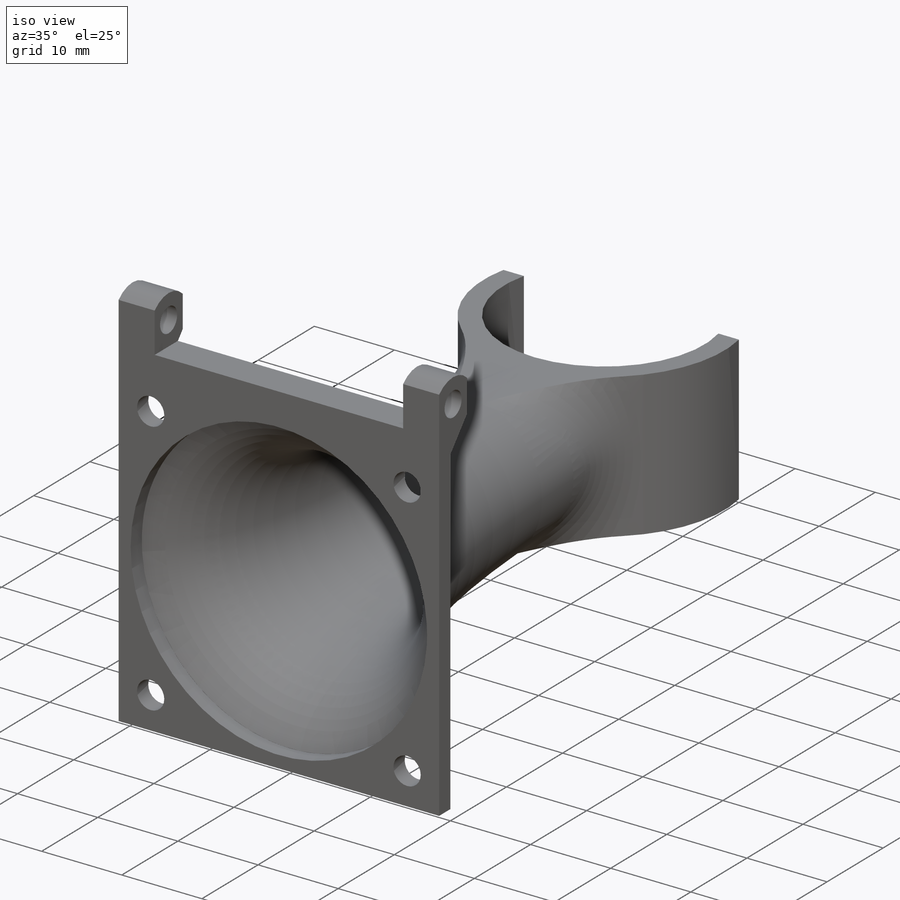
[diagram: iso view]
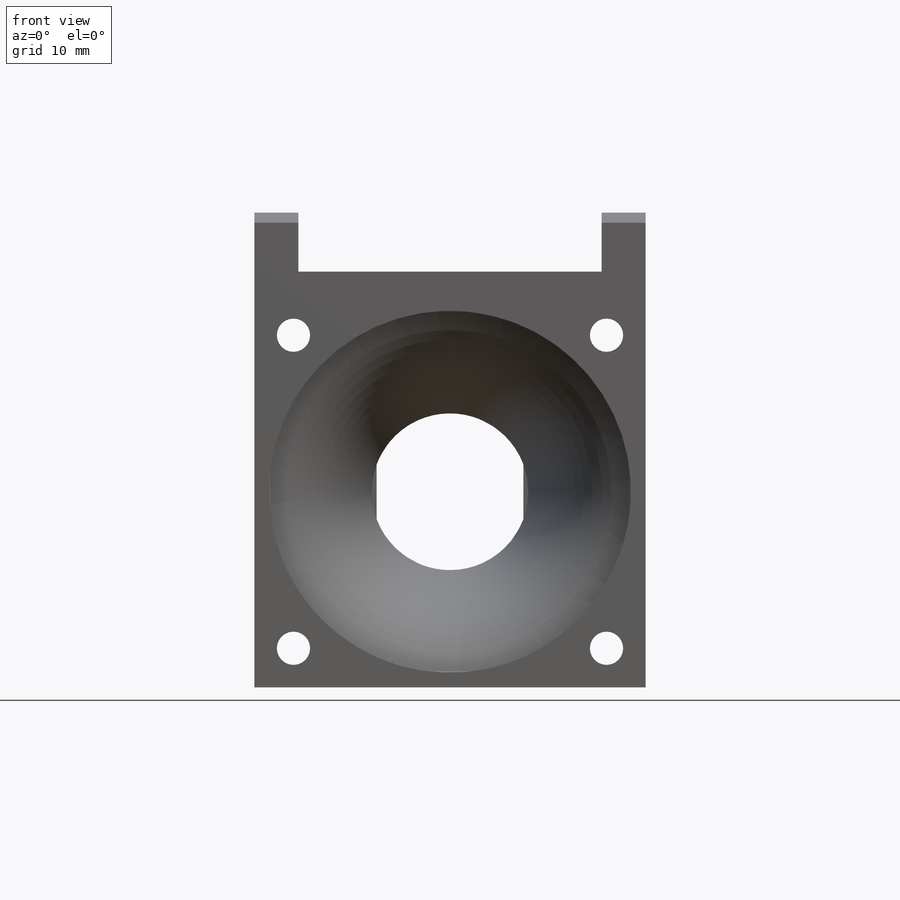
[diagram: front view]
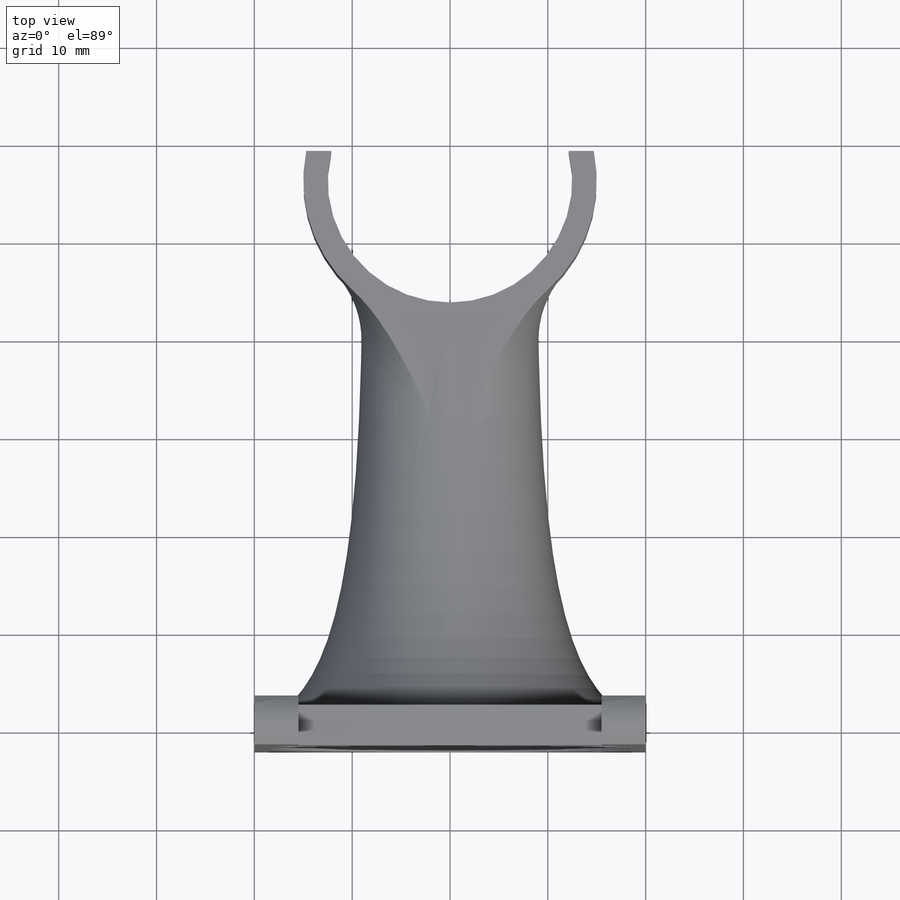
[diagram: top view]
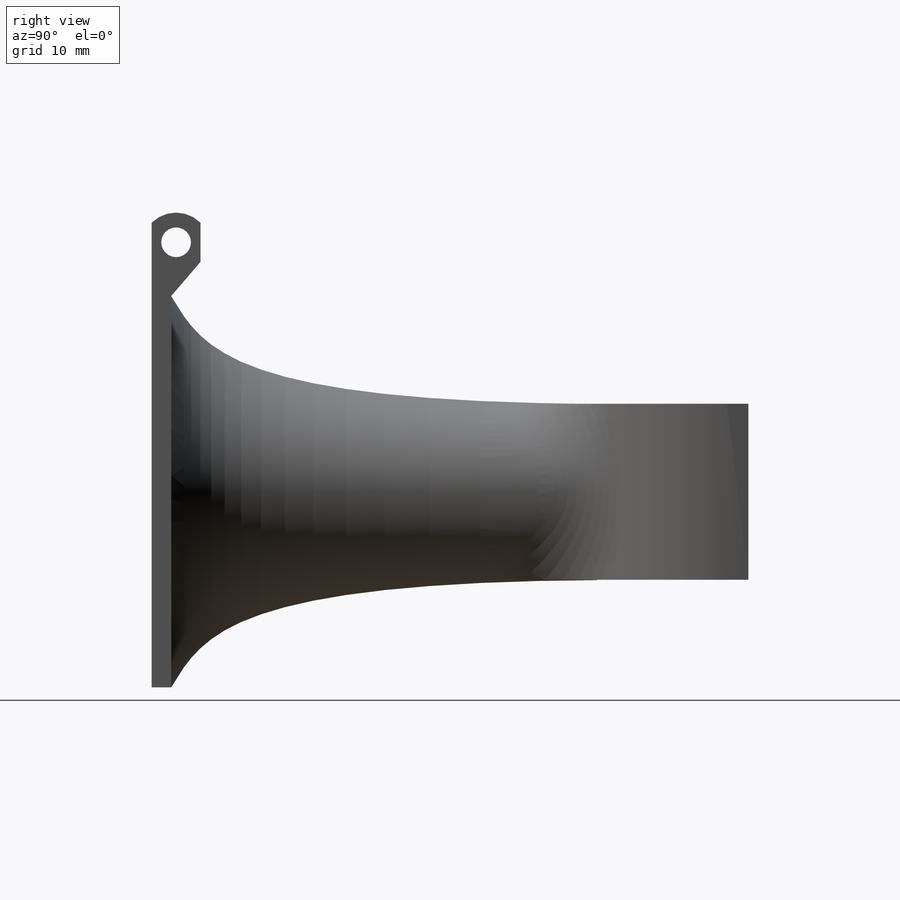
[diagram: right view]
SOLIDWORKS PART (.sldprt)
format: sldprt  version: not decoded by parser v0  size: 465,920 bytes
history: native  units: mm
features: sketch x10, plane x7, extrude x3, cut_extrude x2, material x1, fillet x1 (+10 scaffold rows collapsed)
feature tree (34):
  scaffold x10  (default folders/planes/origin — collapsed)
  material  "Material <nicht angegeben>"
  plane  "Ebene vorne"
  plane  "Ebene oben"
  plane  "Ebene rechts"
  sketch  "Skizze2"  dims[c1.D1=~2.455473mm c1.D2=19.0mm c2.D1=40.0mm c2.D2=32.0mm c3.D1=16.0mm c4.D1=4.0]
  extrude  "Aufsatz-Linear austragen1"  Depth=2mm
  plane  "Ebene1"  Offset=6mm
  sketch  "Skizze3"  dims[D1=10.0mm]
  plane  "Ebene2"  Offset=40mm
  plane  "Ebene4"
  sketch  "Skizze11"  dims[D1=21.0mm]
  sketch  "Skizze4"  dims[D1=8.0mm]
  plane  "Ebene3"  Offset=11mm
  sketch  "Skizze5"  dims[D1=3.0mm]
  extrude  "Aufsatz-Linear austragen2"  Depth=18mm
  sketch  "Skizze6"  dims[D1=9.0mm]
  sketch  "Skizze7"  dims[D1=9.0mm]
  sketch  "Skizze10"
  cut_extrude  "Schnitt-Linear austragen1"  Depth=20mm
  sketch  "Skizze12"  dims[D1=4.0mm]
  extrude  "Aufsatz-Linear austragen3"  Depth=40mm
  sketch  "Skizze13"  dims[D1=31.0mm]
  cut_extrude  "Schnitt-Linear austragen2"  Depth=10mm
  fillet  "Verrundung1"  Radius=10mm
decode coverage: 15 of 16 modeling features carry decoded parameters
note: ~ marks probable driven/reference dimensions
note: suppression state not decoded; provenance and decode notes live in map.json
